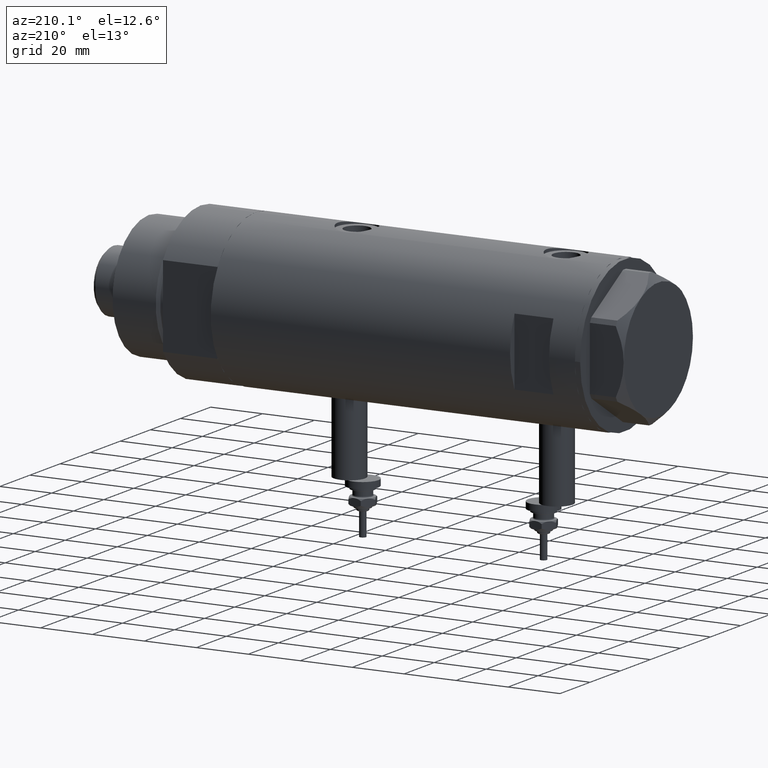
[diagram: clean part render]
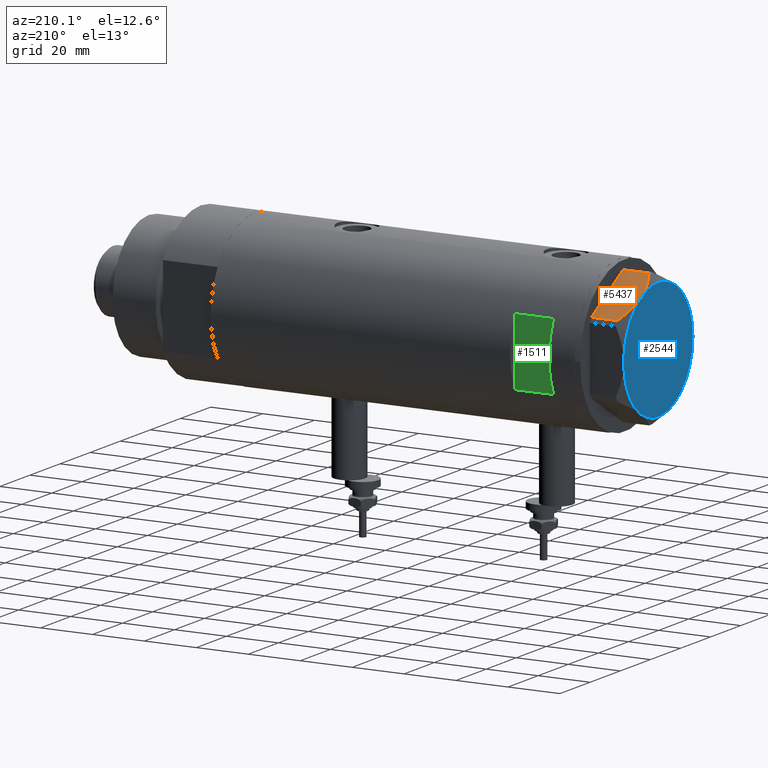
[diagram: same view with three faces highlighted in distinct colors, each labeled with its STEP entity id]
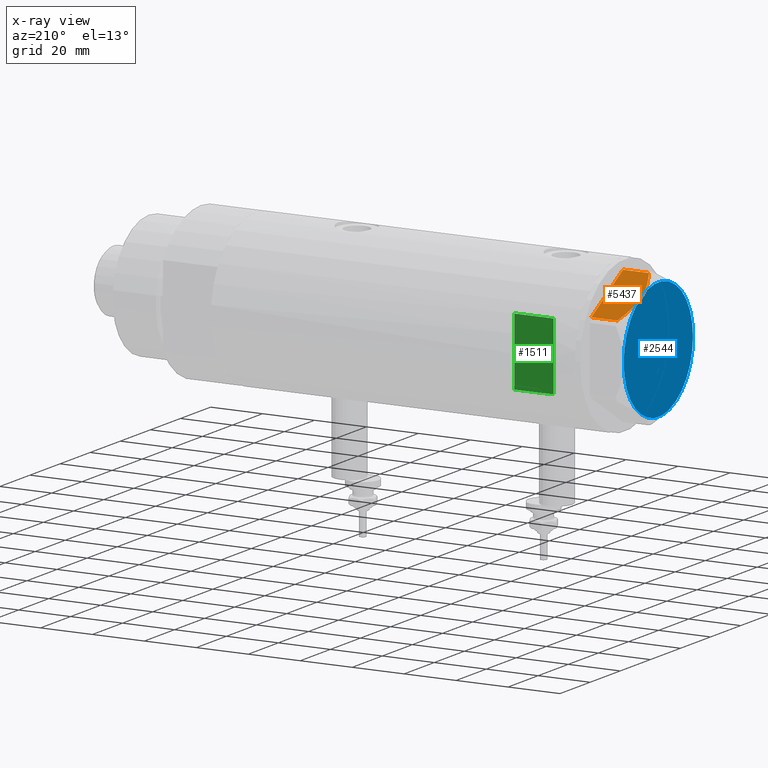
[diagram: x-ray of the same camera — body ghosted, the three highlighted faces saturated]
A machine part, auxiliary view with three faces highlighted in distinct colors.
The next image is the same camera in x-ray (body ghosted, the three faces saturated) — at least one of them is partly hidden behind the body in this view.
Their STEP definitions:

[orange] entity #5437 — the highlighted planar face has unit normal (-0, -0.5, -0.866).
#197 = AXIS2_PLACEMENT_3D ( 'NONE', #1566, #3864, #1660 ) ;
#198 = VECTOR ( 'NONE', #1862, 999.9999999999998863 ) ;
#218 = FACE_OUTER_BOUND ( 'NONE', #3518, .T. ) ;
#349 = CARTESIAN_POINT ( 'NONE',  ( 13.32175508098997518, -18.86679350063487703, 13.00000000000009059 ) ) ;
#560 = EDGE_CURVE ( 'NONE', #4228, #2748, #5107, .T. ) ;
#787 = B_SPLINE_CURVE_WITH_KNOTS ( 'NONE', 3,
 ( #5768, #349, #4459, #2561, #3482, #5827, #3896, #2627, #2126, #4342 ),
 .UNSPECIFIED., .F., .F.,
 ( 4, 2, 2, 2, 4 ),
 ( 0.01376519981810312224, 0.01998941321701590279, 0.02154546656674409533, 0.02310151991647228786, 0.02621362661592867294 ),
 .UNSPECIFIED. ) ;
#1059 = CARTESIAN_POINT ( 'NONE',  ( 0.9699484522387532559, -25.99811238272273428, 13.00000000000000000 ) ) ;
#1097 = CARTESIAN_POINT ( 'NONE',  ( 10.58093321976977030, -20.44920774001120023, 12.98168640760949799 ) ) ;
#1175 = CARTESIAN_POINT ( 'NONE',  ( 0.9699484522387533669, -25.99811238272273428, 0.000000000000000000 ) ) ;
#1191 = CARTESIAN_POINT ( 'NONE',  ( 11.50000000000018296, -19.91858428704203732, 13.00000000000000000 ) ) ;
#1395 = LINE ( 'NONE', #2897, #2874 ) ;
#1566 = CARTESIAN_POINT ( 'NONE',  ( 1.854543075583504180E-13, -26.55811238272274366, 13.00000000000000000 ) ) ;
#1648 = CARTESIAN_POINT ( 'NONE',  ( 7.836767740116727943, -22.03355241838979595, 12.63731396715694544 ) ) ;
#1660 = DIRECTION ( 'NONE',  ( -0.8660254037844345998, -0.5000000000000069944, 0.000000000000000000 ) ) ;
#1675 = CARTESIAN_POINT ( 'NONE',  ( 2.626494320835804253, -25.04170517956326236, 10.87778242614345636 ) ) ;
#1760 = ORIENTED_EDGE ( 'NONE', *, *, #4636, .F. ) ;
#1862 = DIRECTION ( 'NONE',  ( 0.8660254037844345998, 0.5000000000000069944, 0.000000000000000000 ) ) ;
#2126 = CARTESIAN_POINT ( 'NONE',  ( 21.20080365460329475, -14.31782268570100491, 10.43131750950939107 ) ) ;
#2427 = DIRECTION ( 'NONE',  ( 0.000000000000000000, 0.000000000000000000, 1.000000000000000000 ) ) ;
#2472 = ORIENTED_EDGE ( 'NONE', *, *, #2593, .F. ) ;
#2557 = VERTEX_POINT ( 'NONE', #5233 ) ;
#2561 = CARTESIAN_POINT ( 'NONE',  ( 17.32831362639728923, -16.55360584591992890, 12.04068176582933525 ) ) ;
#2593 = EDGE_CURVE ( 'NONE', #2557, #4311, #787, .T. ) ;
#2627 = CARTESIAN_POINT ( 'NONE',  ( 20.35958612119338085, -14.80349985506226673, 10.84420102443838552 ) ) ;
#2748 = VERTEX_POINT ( 'NONE', #1175 ) ;
#2753 = B_SPLINE_CURVE_WITH_KNOTS ( 'NONE', 3,
 ( #5709, #1675, #3992, #4769, #1648, #3512, #3939, #1097, #3053, #1191 ),
 .UNSPECIFIED., .F., .F.,
 ( 4, 2, 2, 2, 4 ),
 ( 0.001228959670438509785, 0.007497079744270810156, 0.01063113978118696706, 0.01219816979964504465, 0.01376519981810312224 ),
 .UNSPECIFIED. ) ;
#2874 = VECTOR ( 'NONE', #2427, 1000.000000000000000 ) ;
#2895 = DIRECTION ( 'NONE',  ( 0.000000000000000000, 0.000000000000000000, -1.000000000000000000 ) ) ;
#2897 = CARTESIAN_POINT ( 'NONE',  ( 22.03005154776153773, -13.83905619136115739, 13.00000000000000000 ) ) ;
#2919 = PLANE ( 'NONE',  #197 ) ;
#2976 = VERTEX_POINT ( 'NONE', #5814 ) ;
#3053 = CARTESIAN_POINT ( 'NONE',  ( 11.04134848610952879, -20.18338686205092358, 13.00000000000009059 ) ) ;
#3482 = CARTESIAN_POINT ( 'NONE',  ( 17.77001848220202618, -16.29858742851869735, 11.89212886775844780 ) ) ;
#3512 = CARTESIAN_POINT ( 'NONE',  ( 9.197898616903064095, -21.24770314027487927, 12.85271263895580240 ) ) ;
#3518 = EDGE_LOOP ( 'NONE', ( #1760, #5538, #4841, #4527, #2472 ) ) ;
#3864 = DIRECTION ( 'NONE',  ( -0.5000000000000069944, 0.8660254037844345998, 0.000000000000000000 ) ) ;
#3896 = CARTESIAN_POINT ( 'NONE',  ( 19.07486218897005870, -15.54523556316577171, 11.39727285399141365 ) ) ;
#3939 = CARTESIAN_POINT ( 'NONE',  ( 9.656518383329991906, -20.98291889467260773, 12.90784227772843451 ) ) ;
#3992 = CARTESIAN_POINT ( 'NONE',  ( 4.320186229910045306, -24.06385169993492568, 11.62937486882610649 ) ) ;
#3996 = CARTESIAN_POINT ( 'NONE',  ( 0.9699484522386113694, -25.99811238272281955, 9.983800287807545359 ) ) ;
#4228 = VERTEX_POINT ( 'NONE', #3996 ) ;
#4311 = VERTEX_POINT ( 'NONE', #4588 ) ;
#4341 = EDGE_CURVE ( 'NONE', #2748, #2976, #5085, .T. ) ;
#4342 = CARTESIAN_POINT ( 'NONE',  ( 22.03005154776154129, -13.83905619136115384, 9.983800287807621743 ) ) ;
#4459 = CARTESIAN_POINT ( 'NONE',  ( 15.11535457301044616, -17.83125835109845880, 12.70765172847700342 ) ) ;
#4468 = CARTESIAN_POINT ( 'NONE',  ( 1.854543075583504180E-13, -26.55811238272274366, 0.000000000000000000 ) ) ;
#4527 = ORIENTED_EDGE ( 'NONE', *, *, #4981, .T. ) ;
#4588 = CARTESIAN_POINT ( 'NONE',  ( 22.03005154776154129, -13.83905619136115384, 9.983800287807621743 ) ) ;
#4636 = EDGE_CURVE ( 'NONE', #4228, #2557, #2753, .T. ) ;
#4769 = CARTESIAN_POINT ( 'NONE',  ( 6.946777556903778184, -22.54738849024392877, 12.42689993760377654 ) ) ;
#4841 = ORIENTED_EDGE ( 'NONE', *, *, #4341, .T. ) ;
#4981 = EDGE_CURVE ( 'NONE', #2976, #4311, #1395, .T. ) ;
#5085 = LINE ( 'NONE', #4468, #198 ) ;
#5107 = LINE ( 'NONE', #1059, #5853 ) ;
#5233 = CARTESIAN_POINT ( 'NONE',  ( 11.50000000000018296, -19.91858428704203732, 13.00000000000000000 ) ) ;
#5437 = ADVANCED_FACE ( 'NONE', ( #218 ), #2919, .F. ) ;
#5538 = ORIENTED_EDGE ( 'NONE', *, *, #560, .T. ) ;
#5709 = CARTESIAN_POINT ( 'NONE',  ( 0.9699484522386113694, -25.99811238272281955, 9.983800287807545359 ) ) ;
#5768 = CARTESIAN_POINT ( 'NONE',  ( 11.50000000000018296, -19.91858428704203732, 13.00000000000000000 ) ) ;
#5814 = CARTESIAN_POINT ( 'NONE',  ( 22.03005154776153773, -13.83905619136115561, 0.000000000000000000 ) ) ;
#5827 = CARTESIAN_POINT ( 'NONE',  ( 18.64279229058406173, -15.79469123530766517, 11.57055225522972286 ) ) ;
#5853 = VECTOR ( 'NONE', #2895, 1000.000000000000000 ) ;

[blue] entity #2544 — the highlighted planar face has unit normal (-1, -0, 0).
#172 = CARTESIAN_POINT ( 'NONE',  ( 22.99999999999995026, 2.373657066004705010E-13, 13.00000000000000000 ) ) ;
#455 = ORIENTED_EDGE ( 'NONE', *, *, #544, .T. ) ;
#534 = CARTESIAN_POINT ( 'NONE',  ( -23.00000000000004619, -8.112498833180673323E-14, 13.00000000000000000 ) ) ;
#544 = EDGE_CURVE ( 'NONE', #5545, #2557, #1515, .T. ) ;
#651 = CARTESIAN_POINT ( 'NONE',  ( 0.000000000000000000, 0.000000000000000000, 13.00000000000000000 ) ) ;
#655 = AXIS2_PLACEMENT_3D ( 'NONE', #3298, #5179, #2071 ) ;
#953 = AXIS2_PLACEMENT_3D ( 'NONE', #4741, #2447, #4271 ) ;
#1045 = CIRCLE ( 'NONE', #1435, 23.00000000000004619 ) ;
#1085 = EDGE_LOOP ( 'NONE', ( #5628, #4325, #4070, #1405, #5832, #455 ) ) ;
#1102 = EDGE_CURVE ( 'NONE', #1384, #5545, #5661, .T. ) ;
#1216 = DIRECTION ( 'NONE',  ( 1.000000000000000000, 0.000000000000000000, 0.000000000000000000 ) ) ;
#1347 = DIRECTION ( 'NONE',  ( 0.000000000000000000, 0.000000000000000000, 1.000000000000000000 ) ) ;
#1384 = VERTEX_POINT ( 'NONE', #534 ) ;
#1405 = ORIENTED_EDGE ( 'NONE', *, *, #2229, .T. ) ;
#1435 = AXIS2_PLACEMENT_3D ( 'NONE', #3610, #1347, #3176 ) ;
#1515 = CIRCLE ( 'NONE', #2863, 23.00000000000004619 ) ;
#1601 = VERTEX_POINT ( 'NONE', #172 ) ;
#1916 = FACE_OUTER_BOUND ( 'NONE', #1085, .T. ) ;
#2071 = DIRECTION ( 'NONE',  ( 1.000000000000000000, 0.000000000000000000, 0.000000000000000000 ) ) ;
#2098 = DIRECTION ( 'NONE',  ( 0.000000000000000000, 0.000000000000000000, 1.000000000000000000 ) ) ;
#2229 = EDGE_CURVE ( 'NONE', #5595, #1384, #5285, .T. ) ;
#2431 = DIRECTION ( 'NONE',  ( 0.000000000000000000, 0.000000000000000000, 1.000000000000000000 ) ) ;
#2447 = DIRECTION ( 'NONE',  ( 0.000000000000000000, 0.000000000000000000, 1.000000000000000000 ) ) ;
#2467 = DIRECTION ( 'NONE',  ( 0.000000000000000000, 0.000000000000000000, 1.000000000000000000 ) ) ;
#2476 = DIRECTION ( 'NONE',  ( 1.000000000000000000, 0.000000000000000000, 0.000000000000000000 ) ) ;
#2481 = CARTESIAN_POINT ( 'NONE',  ( 11.49999999999990408, 19.91858428704219364, 13.00000000000000000 ) ) ;
#2544 = ADVANCED_FACE ( 'NONE', ( #1916 ), #2898, .T. ) ;
#2557 = VERTEX_POINT ( 'NONE', #5233 ) ;
#2863 = AXIS2_PLACEMENT_3D ( 'NONE', #651, #3803, #2476 ) ;
#2898 = PLANE ( 'NONE',  #953 ) ;
#2996 = CARTESIAN_POINT ( 'NONE',  ( 0.000000000000000000, 0.000000000000000000, 13.00000000000000000 ) ) ;
#3106 = CARTESIAN_POINT ( 'NONE',  ( -11.49999999999990585, -19.91858428704219364, 13.00000000000000000 ) ) ;
#3147 = AXIS2_PLACEMENT_3D ( 'NONE', #4732, #2467, #5810 ) ;
#3176 = DIRECTION ( 'NONE',  ( 1.000000000000000000, 0.000000000000000000, 0.000000000000000000 ) ) ;
#3199 = EDGE_CURVE ( 'NONE', #2557, #1601, #4212, .T. ) ;
#3298 = CARTESIAN_POINT ( 'NONE',  ( 0.000000000000000000, 0.000000000000000000, 13.00000000000000000 ) ) ;
#3337 = AXIS2_PLACEMENT_3D ( 'NONE', #2996, #2098, #1216 ) ;
#3469 = EDGE_CURVE ( 'NONE', #5174, #5595, #1045, .T. ) ;
#3610 = CARTESIAN_POINT ( 'NONE',  ( 0.000000000000000000, 0.000000000000000000, 13.00000000000000000 ) ) ;
#3790 = CARTESIAN_POINT ( 'NONE',  ( 0.000000000000000000, 0.000000000000000000, 13.00000000000000000 ) ) ;
#3803 = DIRECTION ( 'NONE',  ( 0.000000000000000000, 0.000000000000000000, 1.000000000000000000 ) ) ;
#4017 = CIRCLE ( 'NONE', #3147, 23.00000000000004619 ) ;
#4070 = ORIENTED_EDGE ( 'NONE', *, *, #3469, .T. ) ;
#4119 = EDGE_CURVE ( 'NONE', #1601, #5174, #4017, .T. ) ;
#4212 = CIRCLE ( 'NONE', #4901, 23.00000000000004619 ) ;
#4271 = DIRECTION ( 'NONE',  ( 1.000000000000000000, 0.000000000000000000, -0.000000000000000000 ) ) ;
#4325 = ORIENTED_EDGE ( 'NONE', *, *, #4119, .T. ) ;
#4732 = CARTESIAN_POINT ( 'NONE',  ( 0.000000000000000000, 0.000000000000000000, 13.00000000000000000 ) ) ;
#4741 = CARTESIAN_POINT ( 'NONE',  ( 0.000000000000000000, 0.000000000000000000, 13.00000000000000000 ) ) ;
#4901 = AXIS2_PLACEMENT_3D ( 'NONE', #3790, #2431, #5686 ) ;
#5174 = VERTEX_POINT ( 'NONE', #2481 ) ;
#5179 = DIRECTION ( 'NONE',  ( 0.000000000000000000, 0.000000000000000000, 1.000000000000000000 ) ) ;
#5233 = CARTESIAN_POINT ( 'NONE',  ( 11.50000000000018296, -19.91858428704203732, 13.00000000000000000 ) ) ;
#5285 = CIRCLE ( 'NONE', #3337, 23.00000000000004619 ) ;
#5465 = CARTESIAN_POINT ( 'NONE',  ( -11.50000000000004441, 19.91858428704211548, 13.00000000000000000 ) ) ;
#5545 = VERTEX_POINT ( 'NONE', #3106 ) ;
#5595 = VERTEX_POINT ( 'NONE', #5465 ) ;
#5628 = ORIENTED_EDGE ( 'NONE', *, *, #3199, .T. ) ;
#5661 = CIRCLE ( 'NONE', #655, 23.00000000000004619 ) ;
#5686 = DIRECTION ( 'NONE',  ( 1.000000000000000000, 0.000000000000000000, 0.000000000000000000 ) ) ;
#5810 = DIRECTION ( 'NONE',  ( 1.000000000000000000, 0.000000000000000000, 0.000000000000000000 ) ) ;
#5832 = ORIENTED_EDGE ( 'NONE', *, *, #1102, .T. ) ;

[green] entity #1511 — the highlighted planar face has unit normal (0, -1, -0).
#155 = CARTESIAN_POINT ( 'NONE',  ( -12.96148139681574030, 26.50000000000000355, 45.09999999999998721 ) ) ;
#281 = DIRECTION ( 'NONE',  ( 1.000000000000000000, -0.000000000000000000, -0.000000000000000000 ) ) ;
#306 = DIRECTION ( 'NONE',  ( 0.000000000000000000, 0.000000000000000000, -1.000000000000000000 ) ) ;
#554 = ORIENTED_EDGE ( 'NONE', *, *, #4714, .T. ) ;
#746 = EDGE_LOOP ( 'NONE', ( #2978, #2851, #554, #5477 ) ) ;
#858 = CARTESIAN_POINT ( 'NONE',  ( 12.96148139681573319, 26.49999999999999645, -70.09999999999999432 ) ) ;
#1123 = AXIS2_PLACEMENT_3D ( 'NONE', #2167, #4358, #306 ) ;
#1511 = ADVANCED_FACE ( 'NONE', ( #2591 ), #3427, .F. ) ;
#1709 = VECTOR ( 'NONE', #3977, 1000.000000000000000 ) ;
#1932 = VERTEX_POINT ( 'NONE', #155 ) ;
#2049 = CARTESIAN_POINT ( 'NONE',  ( 12.96148139681571898, 26.50000000000000355, 45.09999999999998721 ) ) ;
#2101 = VECTOR ( 'NONE', #281, 1000.000000000000000 ) ;
#2157 = LINE ( 'NONE', #3414, #4888 ) ;
#2167 = CARTESIAN_POINT ( 'NONE',  ( -29.50000000000000355, 26.50000000000000355, 60.09999999999998721 ) ) ;
#2218 = EDGE_CURVE ( 'NONE', #5846, #2927, #5775, .T. ) ;
#2228 = CARTESIAN_POINT ( 'NONE',  ( 12.96148139681573319, 26.49999999999998934, 60.09999999999998721 ) ) ;
#2285 = VECTOR ( 'NONE', #5337, 1000.000000000000000 ) ;
#2591 = FACE_OUTER_BOUND ( 'NONE', #746, .T. ) ;
#2618 = EDGE_CURVE ( 'NONE', #1932, #3132, #3408, .T. ) ;
#2851 = ORIENTED_EDGE ( 'NONE', *, *, #2618, .F. ) ;
#2927 = VERTEX_POINT ( 'NONE', #2228 ) ;
#2928 = DIRECTION ( 'NONE',  ( 0.000000000000000000, 0.000000000000000000, 1.000000000000000000 ) ) ;
#2978 = ORIENTED_EDGE ( 'NONE', *, *, #5549, .T. ) ;
#3132 = VERTEX_POINT ( 'NONE', #2049 ) ;
#3408 = LINE ( 'NONE', #4895, #2101 ) ;
#3414 = CARTESIAN_POINT ( 'NONE',  ( -12.96148139681573319, 26.49999999999999645, -70.09999999999999432 ) ) ;
#3427 = PLANE ( 'NONE',  #1123 ) ;
#3966 = CARTESIAN_POINT ( 'NONE',  ( -29.50000000000000355, 26.50000000000000355, 60.09999999999998721 ) ) ;
#3977 = DIRECTION ( 'NONE',  ( -0.000000000000000000, -0.000000000000000000, -1.000000000000000000 ) ) ;
#4358 = DIRECTION ( 'NONE',  ( 0.000000000000000000, -1.000000000000000000, -0.000000000000000000 ) ) ;
#4714 = EDGE_CURVE ( 'NONE', #1932, #5846, #2157, .T. ) ;
#4888 = VECTOR ( 'NONE', #2928, 1000.000000000000000 ) ;
#4895 = CARTESIAN_POINT ( 'NONE',  ( -29.50000000000000355, 26.50000000000000355, 45.09999999999998721 ) ) ;
#4950 = LINE ( 'NONE', #858, #1709 ) ;
#5251 = CARTESIAN_POINT ( 'NONE',  ( -12.96148139681573319, 26.49999999999998934, 60.09999999999998721 ) ) ;
#5337 = DIRECTION ( 'NONE',  ( 1.000000000000000000, -0.000000000000000000, -0.000000000000000000 ) ) ;
#5477 = ORIENTED_EDGE ( 'NONE', *, *, #2218, .T. ) ;
#5549 = EDGE_CURVE ( 'NONE', #2927, #3132, #4950, .T. ) ;
#5775 = LINE ( 'NONE', #3966, #2285 ) ;
#5846 = VERTEX_POINT ( 'NONE', #5251 ) ;